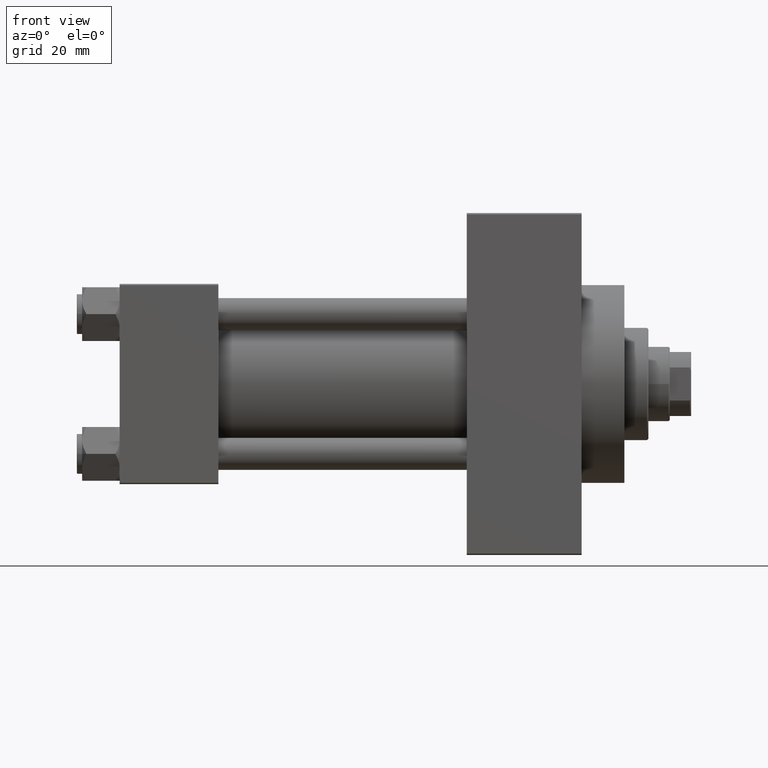
[diagram: clean part render]
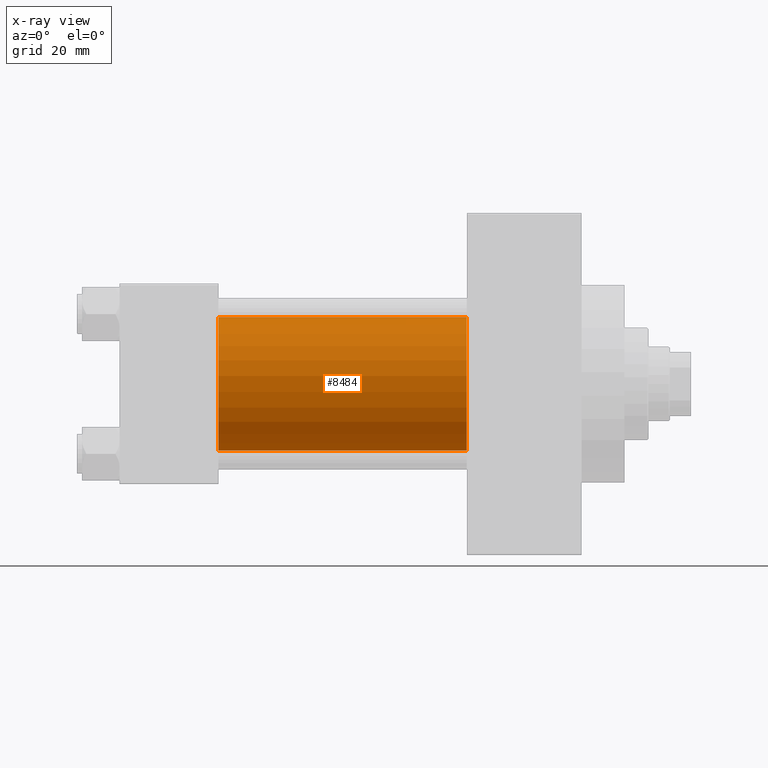
[diagram: x-ray — body ghosted, one internal face saturated and labeled with its STEP entity id]
A machine part, front view, then the same camera in x-ray: the body is ghosted and one INTERNAL B-rep face — a face not visible from any outside direction — is saturated and labeled: STEP entity #8484.
In plain terms, the highlighted cylindrical surface (partial cylindrical patch) has radius 25 mm, axis along (-1, -0, -0).
Its self-contained STEP definition (entity closure, byte-faithful):
#2200 = CARTESIAN_POINT ( 'NONE',  ( 130.0000000000000000, 4.595317839031718093E-16, -25.00000000000000000 ) ) ;
#2413 = CARTESIAN_POINT ( 'NONE',  ( 37.00000000000000000, 4.595317839031718093E-16, -25.00000000000000000 ) ) ;
#6322 = ORIENTED_EDGE ( 'NONE', *, *, #37165, .F. ) ;
#7126 = ORIENTED_EDGE ( 'NONE', *, *, #9497, .T. ) ;
#7467 = CARTESIAN_POINT ( 'NONE',  ( 37.00000000000000000, -2.602085213965210642E-15, 25.00000000000000000 ) ) ;
#7738 = CARTESIAN_POINT ( 'NONE',  ( 37.00000000000000000, -2.602085213965210642E-15, 0.000000000000000000 ) ) ;
#8322 = VECTOR ( 'NONE', #12849, 1000.000000000000000 ) ;
#8484 = ADVANCED_FACE ( 'NONE', ( #9871 ), #20612, .F. ) ;
#9025 = LINE ( 'NONE', #45546, #8322 ) ;
#9497 = EDGE_CURVE ( 'NONE', #27817, #13026, #10321, .T. ) ;
#9871 = FACE_OUTER_BOUND ( 'NONE', #21416, .T. ) ;
#10093 = CARTESIAN_POINT ( 'NONE',  ( 130.0000000000000000, -2.602085213965210642E-15, 0.000000000000000000 ) ) ;
#10288 = AXIS2_PLACEMENT_3D ( 'NONE', #10093, #31822, #42089 ) ;
#10321 = CIRCLE ( 'NONE', #30906, 25.00000000000000000 ) ;
#11864 = ORIENTED_EDGE ( 'NONE', *, *, #26566, .T. ) ;
#12849 = DIRECTION ( 'NONE',  ( -1.000000000000000000, -0.000000000000000000, -0.000000000000000000 ) ) ;
#13026 = VERTEX_POINT ( 'NONE', #2200 ) ;
#13757 = DIRECTION ( 'NONE',  ( 1.000000000000000000, 0.000000000000000000, 0.000000000000000000 ) ) ;
#14256 = DIRECTION ( 'NONE',  ( -1.000000000000000000, -0.000000000000000000, -0.000000000000000000 ) ) ;
#16791 = CARTESIAN_POINT ( 'NONE',  ( 130.0000000000000000, -2.602085213965210642E-15, 25.00000000000000000 ) ) ;
#16894 = EDGE_CURVE ( 'NONE', #18386, #33725, #44715, .T. ) ;
#18386 = VERTEX_POINT ( 'NONE', #7467 ) ;
#20331 = AXIS2_PLACEMENT_3D ( 'NONE', #7738, #40675, #36629 ) ;
#20612 = CYLINDRICAL_SURFACE ( 'NONE', #10288, 25.00000000000000000 ) ;
#20935 = ORIENTED_EDGE ( 'NONE', *, *, #16894, .F. ) ;
#21416 = EDGE_LOOP ( 'NONE', ( #7126, #11864, #20935, #6322 ) ) ;
#26566 = EDGE_CURVE ( 'NONE', #13026, #33725, #9025, .T. ) ;
#27817 = VERTEX_POINT ( 'NONE', #16791 ) ;
#30906 = AXIS2_PLACEMENT_3D ( 'NONE', #39754, #13757, #35938 ) ;
#31822 = DIRECTION ( 'NONE',  ( -1.000000000000000000, -0.000000000000000000, -0.000000000000000000 ) ) ;
#33725 = VERTEX_POINT ( 'NONE', #2413 ) ;
#35938 = DIRECTION ( 'NONE',  ( 0.000000000000000000, 0.000000000000000000, -1.000000000000000000 ) ) ;
#36629 = DIRECTION ( 'NONE',  ( 0.000000000000000000, 0.000000000000000000, -1.000000000000000000 ) ) ;
#36810 = VECTOR ( 'NONE', #14256, 1000.000000000000000 ) ;
#37165 = EDGE_CURVE ( 'NONE', #27817, #18386, #40479, .T. ) ;
#39754 = CARTESIAN_POINT ( 'NONE',  ( 130.0000000000000000, -2.602085213965210642E-15, 0.000000000000000000 ) ) ;
#39777 = CARTESIAN_POINT ( 'NONE',  ( 130.0000000000000000, -2.602085213965210642E-15, 25.00000000000000000 ) ) ;
#40479 = LINE ( 'NONE', #39777, #36810 ) ;
#40675 = DIRECTION ( 'NONE',  ( 1.000000000000000000, 0.000000000000000000, 0.000000000000000000 ) ) ;
#42089 = DIRECTION ( 'NONE',  ( 0.000000000000000000, 0.000000000000000000, 1.000000000000000000 ) ) ;
#44715 = CIRCLE ( 'NONE', #20331, 25.00000000000000000 ) ;
#45546 = CARTESIAN_POINT ( 'NONE',  ( 130.0000000000000000, 4.595317839031718093E-16, -25.00000000000000000 ) ) ;